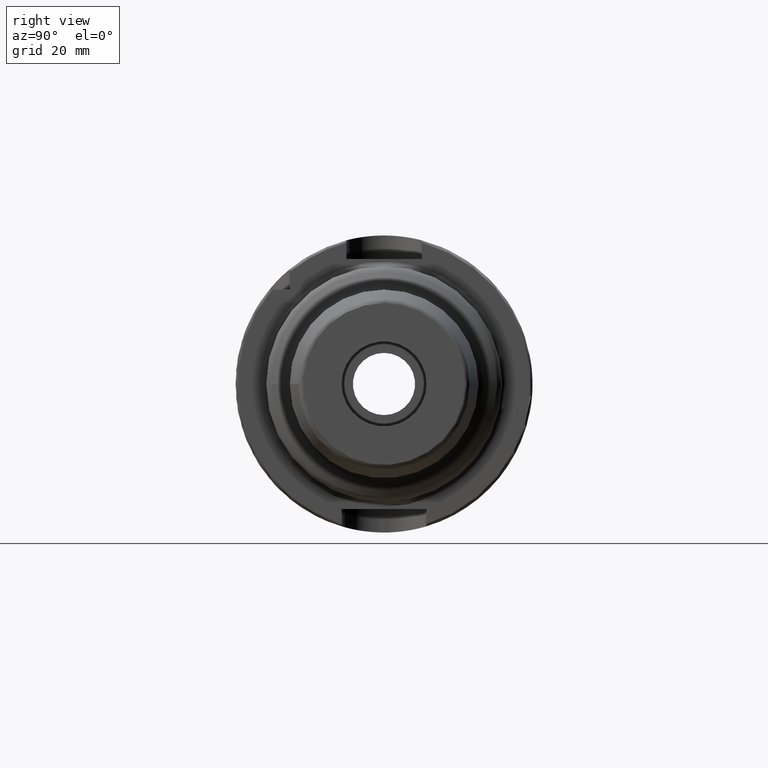
[diagram: clean part render]
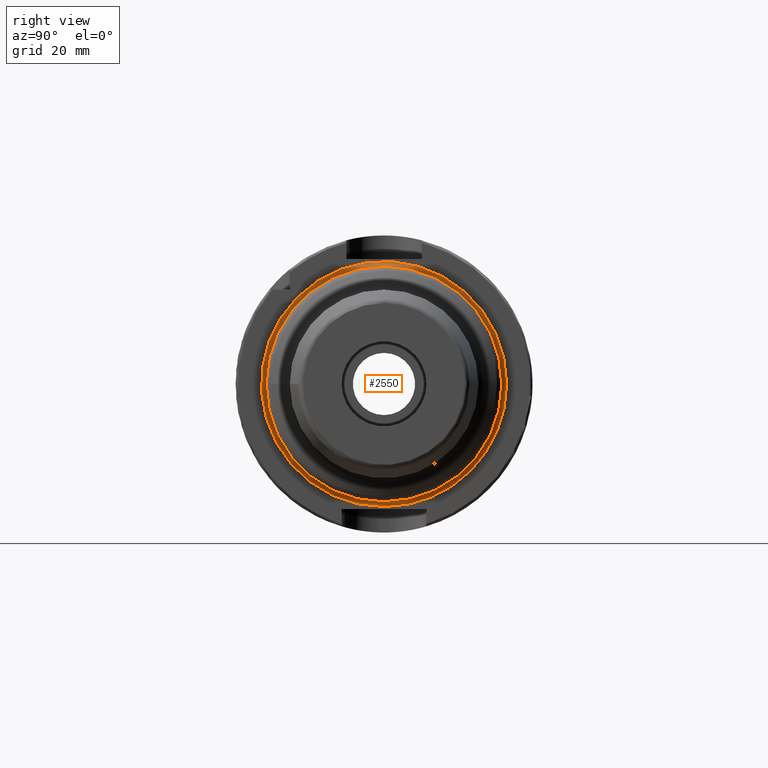
[diagram: same view with one face highlighted and labeled with its STEP entity id]
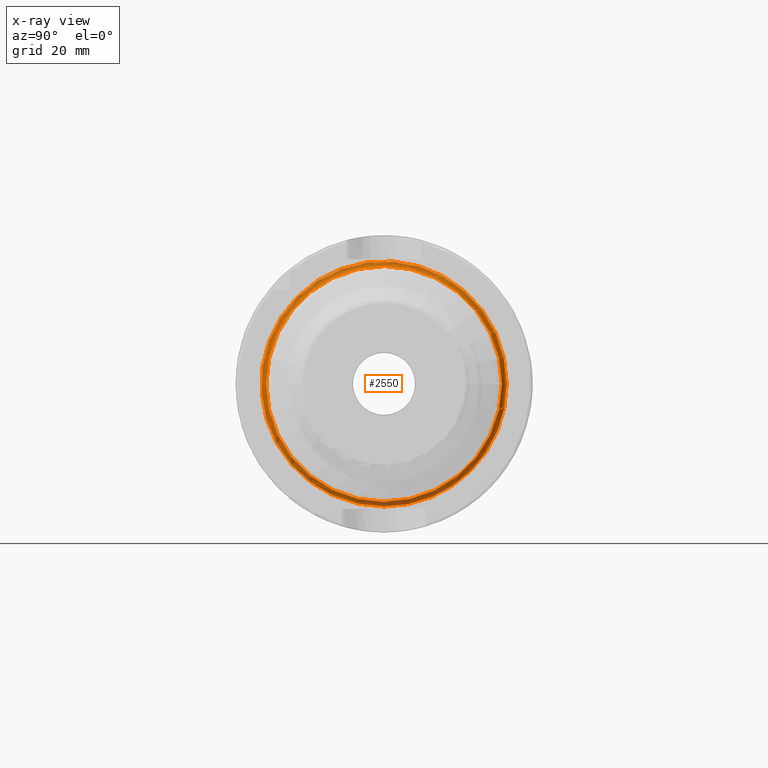
[diagram: x-ray of the same camera — body ghosted, the highlighted face saturated]
A machine part, right view. The second image highlights one B-rep face of the part: STEP entity #2550.
The next image is the same camera in x-ray: the body ghosted, the highlighted face saturated — about 0% of this face is hidden behind the body in this view.
In plain terms, the highlighted toroidal blend (fillet) surface has major radius 26 mm and minor (blend) radius 1 mm.
Its self-contained STEP definition (entity closure, byte-faithful):
#118=TOROIDAL_SURFACE('',#2736,26.,1.);
#213=FACE_OUTER_BOUND('',#350,.T.);
#350=EDGE_LOOP('',(#1722,#1723,#1724,#1725,#1726,#1727,#1728));
#744=CIRCLE('',#2733,25.);
#745=CIRCLE('',#2734,25.);
#746=CIRCLE('',#2735,25.);
#747=CIRCLE('',#2737,1.);
#748=CIRCLE('',#2738,26.);
#749=CIRCLE('',#2739,26.);
#968=VERTEX_POINT('',#3984);
#969=VERTEX_POINT('',#3986);
#970=VERTEX_POINT('',#3988);
#971=VERTEX_POINT('',#3992);
#972=VERTEX_POINT('',#3994);
#1270=EDGE_CURVE('',#969,#968,#744,.T.);
#1271=EDGE_CURVE('',#970,#969,#745,.T.);
#1272=EDGE_CURVE('',#968,#970,#746,.T.);
#1273=EDGE_CURVE('',#969,#971,#747,.T.);
#1274=EDGE_CURVE('',#971,#972,#748,.T.);
#1275=EDGE_CURVE('',#972,#971,#749,.T.);
#1722=ORIENTED_EDGE('',*,*,#1271,.T.);
#1723=ORIENTED_EDGE('',*,*,#1273,.T.);
#1724=ORIENTED_EDGE('',*,*,#1274,.T.);
#1725=ORIENTED_EDGE('',*,*,#1275,.T.);
#1726=ORIENTED_EDGE('',*,*,#1273,.F.);
#1727=ORIENTED_EDGE('',*,*,#1270,.T.);
#1728=ORIENTED_EDGE('',*,*,#1272,.T.);
#2550=ADVANCED_FACE('',(#213),#118,.F.);
#2733=AXIS2_PLACEMENT_3D('',#3987,#3146,#3147);
#2734=AXIS2_PLACEMENT_3D('',#3989,#3148,#3149);
#2735=AXIS2_PLACEMENT_3D('',#3990,#3150,#3151);
#2736=AXIS2_PLACEMENT_3D('',#3991,#3152,#3153);
#2737=AXIS2_PLACEMENT_3D('',#3993,#3154,#3155);
#2738=AXIS2_PLACEMENT_3D('',#3995,#3156,#3157);
#2739=AXIS2_PLACEMENT_3D('',#3996,#3158,#3159);
#3146=DIRECTION('center_axis',(-1.,0.,0.));
#3147=DIRECTION('ref_axis',(0.,-1.,-1.22464679914735E-16));
#3148=DIRECTION('center_axis',(-1.,0.,0.));
#3149=DIRECTION('ref_axis',(0.,-1.,-1.22464679914735E-16));
#3150=DIRECTION('center_axis',(-1.,0.,0.));
#3151=DIRECTION('ref_axis',(0.,-1.,-1.22464679914735E-16));
#3152=DIRECTION('center_axis',(-1.,0.,0.));
#3153=DIRECTION('ref_axis',(0.,0.,1.));
#3154=DIRECTION('center_axis',(0.,-1.,1.22464679914735E-16));
#3155=DIRECTION('ref_axis',(0.,-1.22464679914735E-16,-1.));
#3156=DIRECTION('center_axis',(1.,0.,0.));
#3157=DIRECTION('ref_axis',(0.,-1.,-1.22464679914735E-16));
#3158=DIRECTION('center_axis',(1.,0.,0.));
#3159=DIRECTION('ref_axis',(0.,-1.,-1.22464679914735E-16));
#3984=CARTESIAN_POINT('',(27.,-25.,-3.06161699786838E-15));
#3986=CARTESIAN_POINT('',(27.,-3.06161699786838E-15,-25.));
#3987=CARTESIAN_POINT('Origin',(27.,0.,0.));
#3988=CARTESIAN_POINT('',(27.,25.,0.));
#3989=CARTESIAN_POINT('Origin',(27.,0.,0.));
#3990=CARTESIAN_POINT('Origin',(27.,0.,0.));
#3991=CARTESIAN_POINT('Origin',(27.,0.,0.));
#3992=CARTESIAN_POINT('',(26.,-3.18408167778312E-15,-26.));
#3993=CARTESIAN_POINT('Origin',(27.,-3.18408167778312E-15,-26.));
#3994=CARTESIAN_POINT('',(26.,26.,6.36816335556624E-15));
#3995=CARTESIAN_POINT('Origin',(26.,0.,0.));
#3996=CARTESIAN_POINT('Origin',(26.,0.,0.));